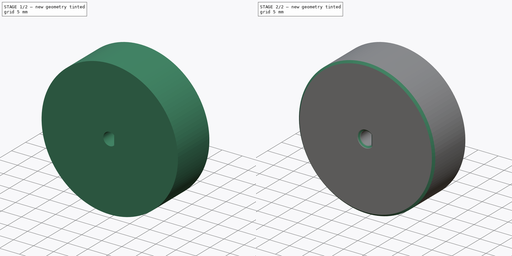
[diagram: build sequence overview — one tinted view per stage of 2, left to right]
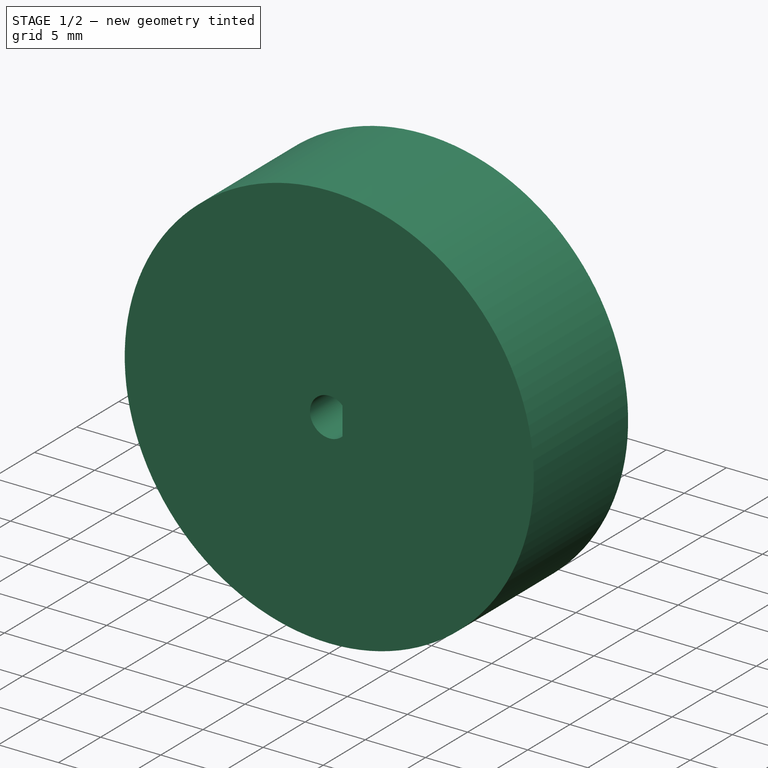
[diagram: stage 1 of 2 — iso view after this stage's code; geometry added in this stage tinted green]
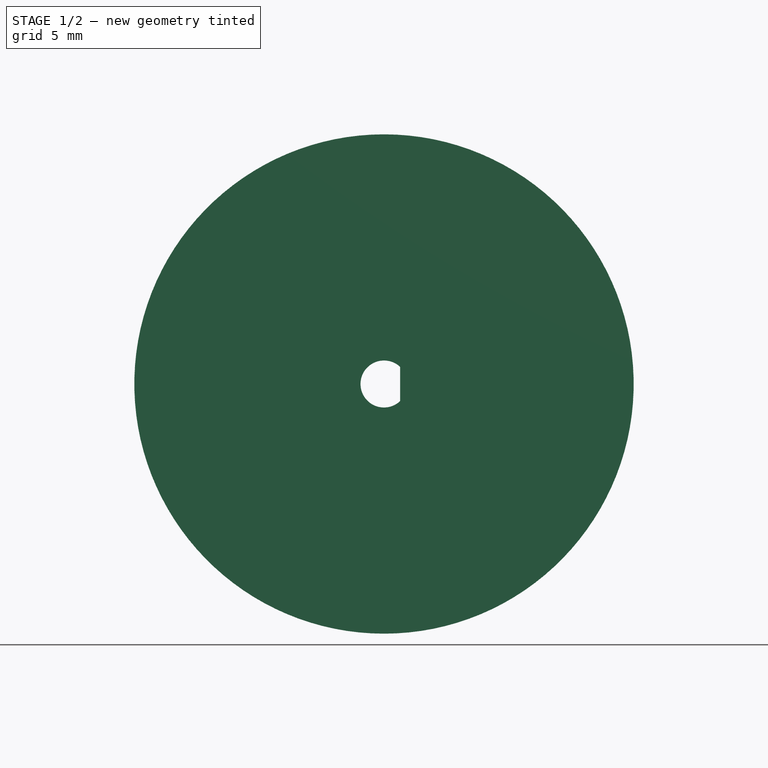
[diagram: stage 1 of 2 — front view after this stage's code; geometry added in this stage tinted green]
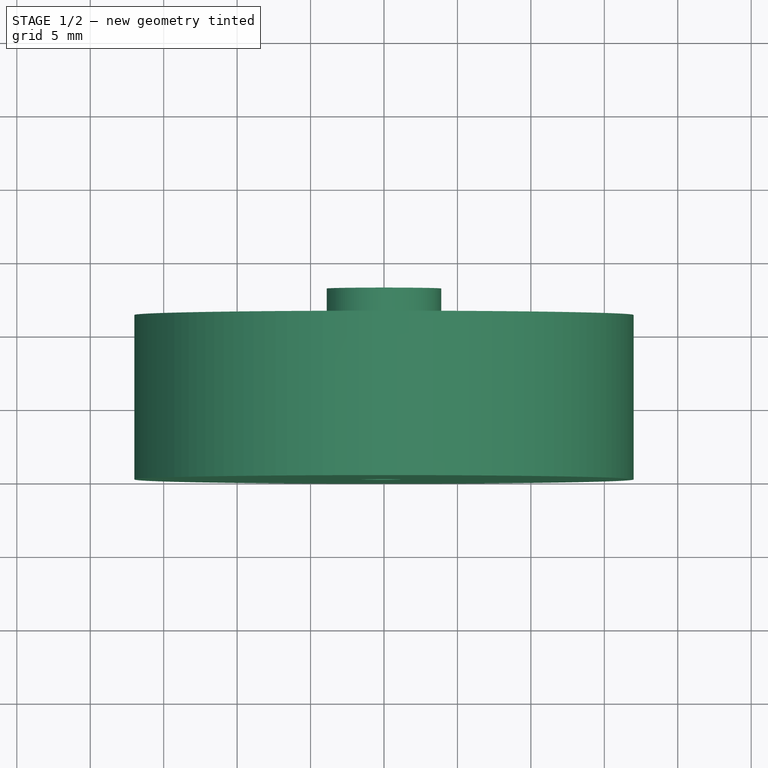
[diagram: stage 1 of 2 — top view after this stage's code; geometry added in this stage tinted green]
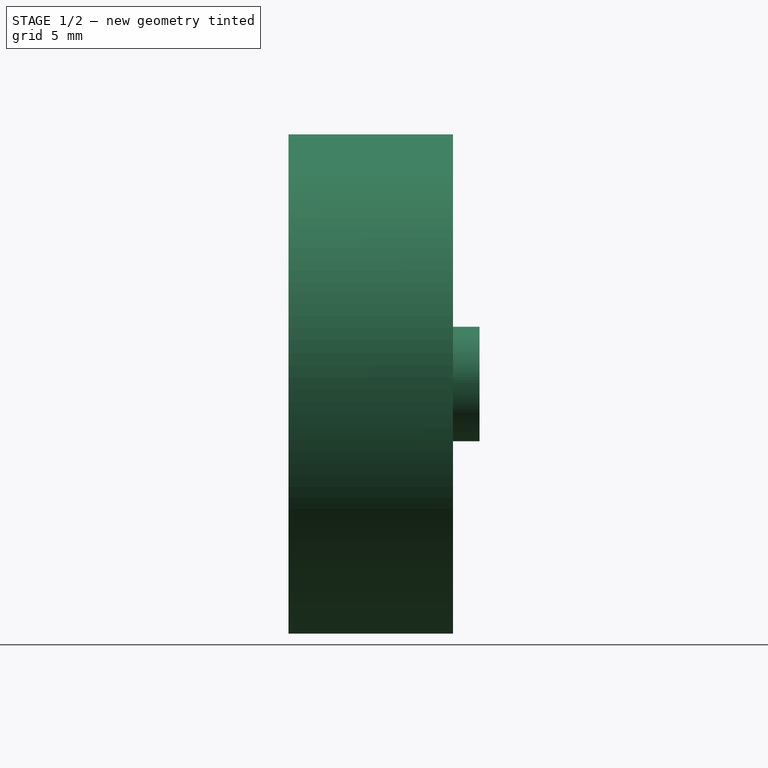
[diagram: stage 1 of 2 — right view after this stage's code; geometry added in this stage tinted green]
FCSTD DOCUMENT  (FreeCAD 0.21R33668 +7 (Git))
Label: robot-wheel
License: All rights reserved
LicenseURL: https://en.wikipedia.org/wiki/All_rights_reserved
objects: Sketcher::SketchObject×2, PartDesign::Revolution×1, PartDesign::Pocket×1, PartDesign::Chamfer×1, PartDesign::Body×1
note: 9 computed .brp shape members not serialized (recipe doc carries the construction recipe); baked Part::Feature solids carry a one-line shape summary decoded from their .brp

FEATURE [Sketcher::SketchObject] Sketch
  FullyConstrained = true
  MapMode = 5
  Placement = pos=(0,0,0) rot=(0.57735,0.57735,0.57735;2.0944rad)
  Support = -> [YZ_Plane]
  sketch-geometry (6):
    g0: LineSegment StartX=11.2 StartY=17 StartZ=0 EndX=0 EndY=17 EndZ=0
    g1: LineSegment StartX=0 StartY=17 StartZ=0 EndX=0 EndY=0 EndZ=0
    g2: LineSegment StartX=0 StartY=0 StartZ=0 EndX=13 EndY=0 EndZ=0
    g3: LineSegment StartX=11.2 StartY=17 StartZ=0 EndX=11.2 EndY=3.9 EndZ=0
    g4: LineSegment StartX=13 StartY=3.9 StartZ=0 EndX=13 EndY=0 EndZ=0
    g5: LineSegment StartX=11.2 StartY=3.9 StartZ=0 EndX=13 EndY=3.9 EndZ=0
  constraints (17):
    c: Horizontal(g0)
    c: Coincident(g0,g1)
    c: Vertical(g1)
    c: Coincident(g1,g2)
    c: Horizontal(g2)
    c: Coincident(g0,g3)
    c: Vertical(g3)
    c: Coincident(g4,g2)
    c: Vertical(g4)
    c: DistanceY(g1,g1) = 17
    c: DistanceY(g4,g4) = 3.9
    c: DistanceX(g2,g2) = 13
    c: Coincident(g1,g-1)
    c: DistanceX(g0,g0) = 11.2
    c: Coincident(g5,g4)
    c: Coincident(g3,g5)
    c: Horizontal(g5)
FEATURE [PartDesign::Revolution] Revolution  label="base"
  Angle = 360
  Axis = (3e-16,1,-2e-16)
  Base = (0,0,0)
  Placement = pos=(0,0,0) rot=(0.57735,0.57735,0.57735;2.0944rad)
  Profile = -> Sketch
  ReferenceAxis = -> Sketch [H_Axis]
FEATURE [Sketcher::SketchObject] Sketch001
  FullyConstrained = true
  MapMode = 5
  Placement = pos=(0,0,0) rot=(1,0,0;1.5708rad)
  Support = -> [XZ_Plane]
  sketch-geometry (3):
    g0: ArcOfCircle CenterX=0 CenterY=0 CenterZ=0 NormalX=0 NormalY=0 NormalZ=1 AngleXU=0 Radius=1.6 StartAngle=0.812756 EndAngle=5.47043
    g1: LineSegment StartX=1.1 StartY=1.1619 StartZ=0 EndX=1.1 EndY=-1.1619 EndZ=0
    g2: GeomPoint X=-1.6 Y=0 Z=0
  constraints (8):
    c: Coincident(g0,g-1)
    c: Coincident(g1,g0)
    c: Coincident(g1,g0)
    c: Diameter(g0) = 3.2
    c: Vertical(g1)
    c: PointOnObject(g2,g0)
    c: PointOnObject(g2,g-1)
    c: DistanceX(g2,g0) = 2.7
FEATURE [PartDesign::Pocket] Pocket  label="d-cut"
  BaseFeature = -> Revolution
  Direction = (0,1,2e-16)
  Length = 10
  Length2 = 5
  Placement = pos=(0,0,0) rot=(0.57735,0.57735,0.57735;2.0944rad)
  Profile = -> Sketch001
  ReferenceAxis = -> Sketch001 [N_Axis]
  Type = 1
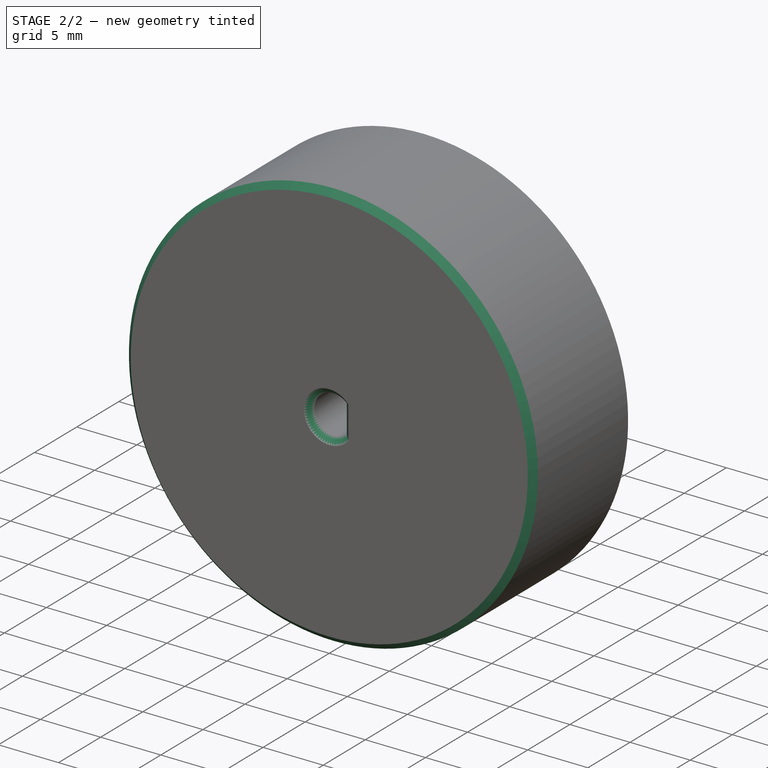
[diagram: stage 2 of 2 — iso view after this stage's code; geometry added in this stage tinted green]
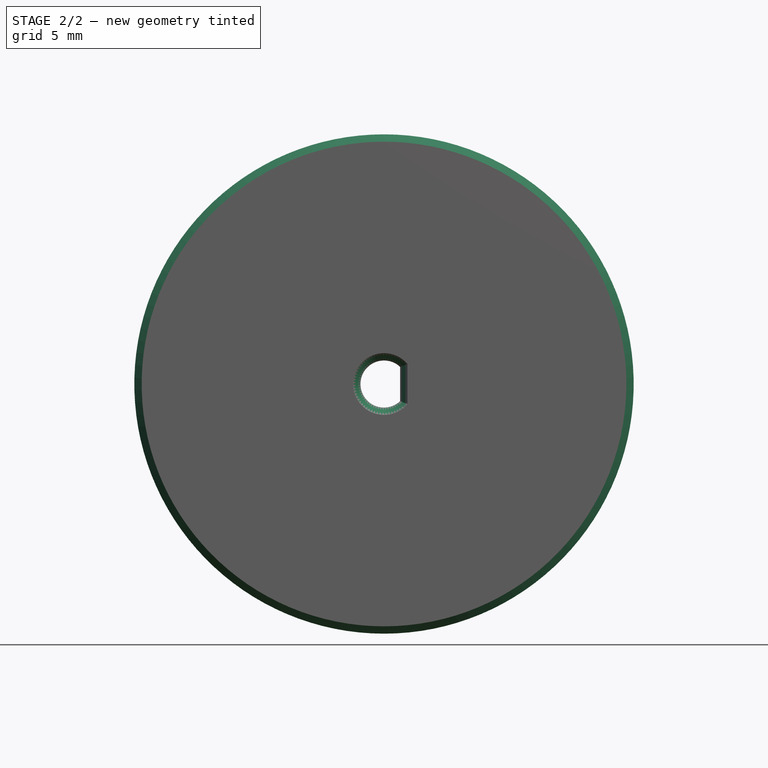
[diagram: stage 2 of 2 — front view after this stage's code; geometry added in this stage tinted green]
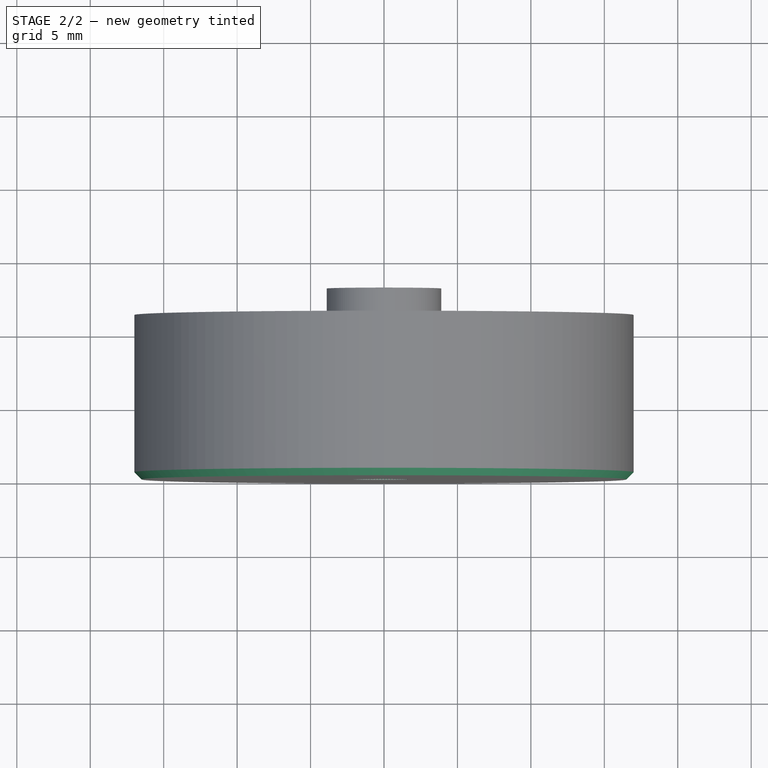
[diagram: stage 2 of 2 — top view after this stage's code; geometry added in this stage tinted green]
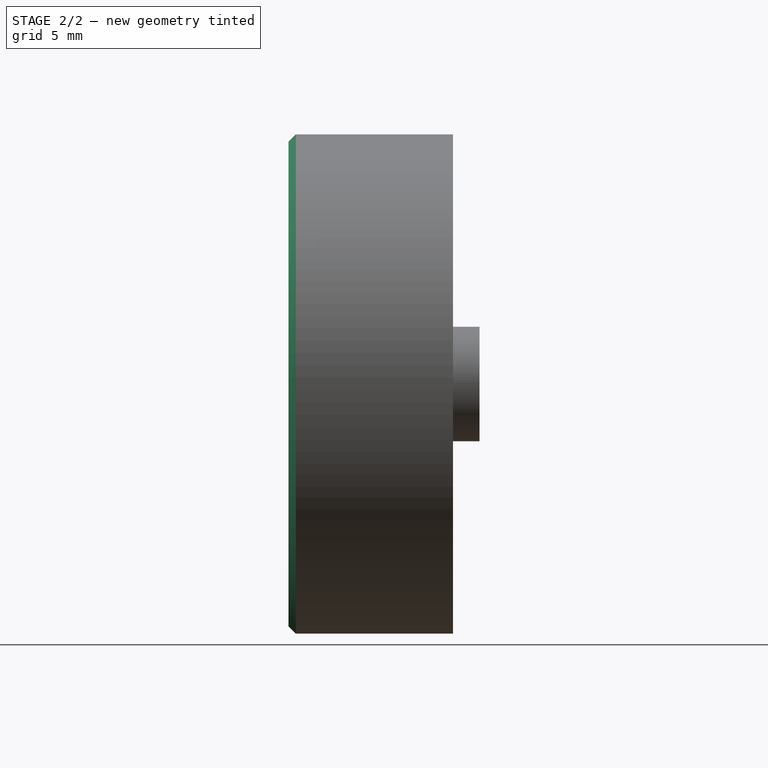
[diagram: stage 2 of 2 — right view after this stage's code; geometry added in this stage tinted green]
FEATURE [PartDesign::Chamfer] Chamfer
  Angle = 45
  Base = -> Pocket [Face3]
  BaseFeature = -> Pocket
  ChamferType = 0
  FlipDirection = false
  Placement = pos=(0,0,0) rot=(0.57735,0.57735,0.57735;2.0944rad)
  Size = 0.5
  Size2 = 1
  SupportTransform = false
  UseAllEdges = false
FEATURE [PartDesign::Body] Body  label="wheel"
  Group = -> [Sketch,Revolution,Sketch001,Pocket,Chamfer]
  Origin = -> Origin
  Tip = -> Chamfer
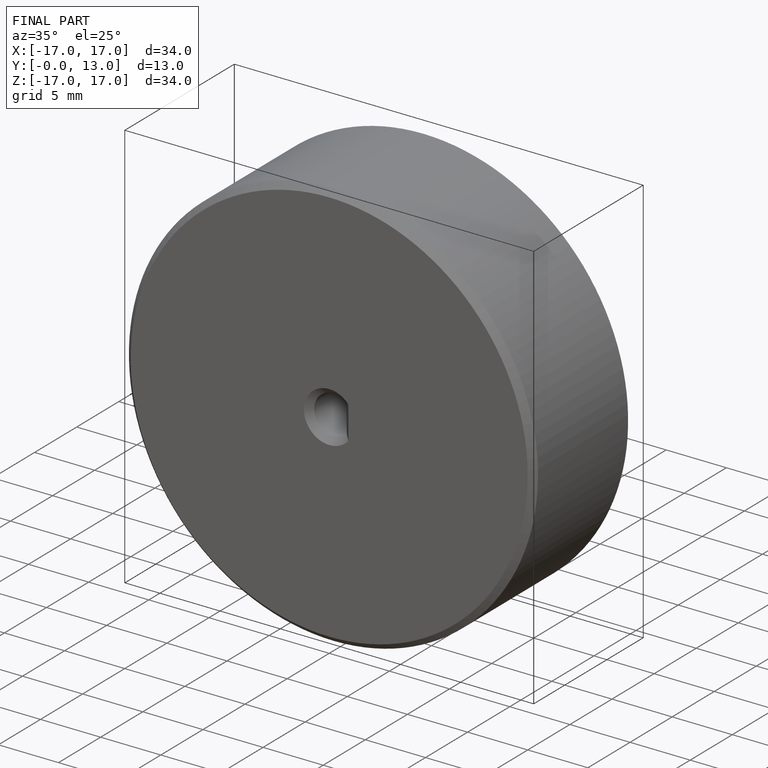
[diagram: finished part — iso view with bounding-box wireframe]
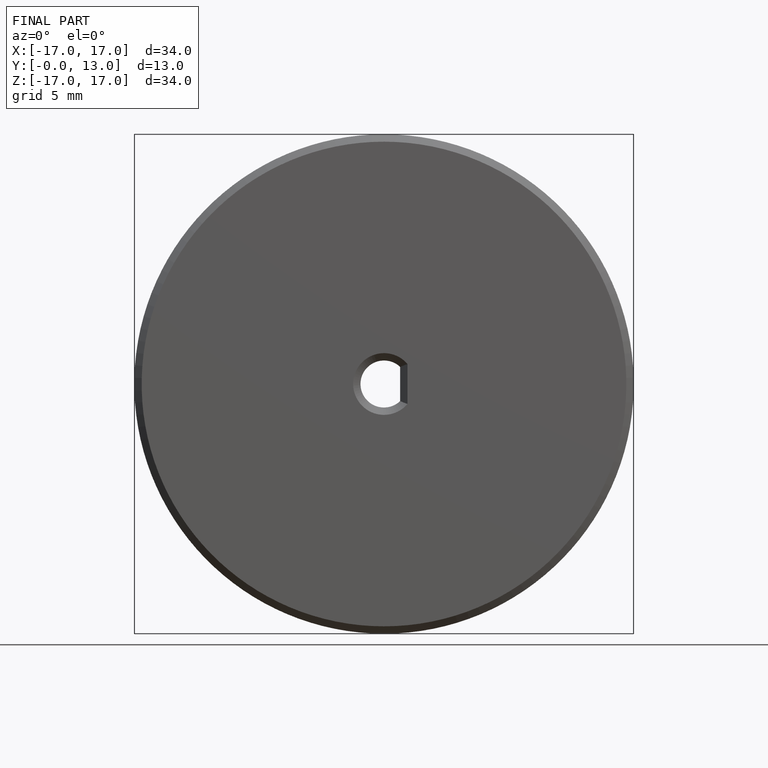
[diagram: finished part — front view with bounding-box wireframe]
